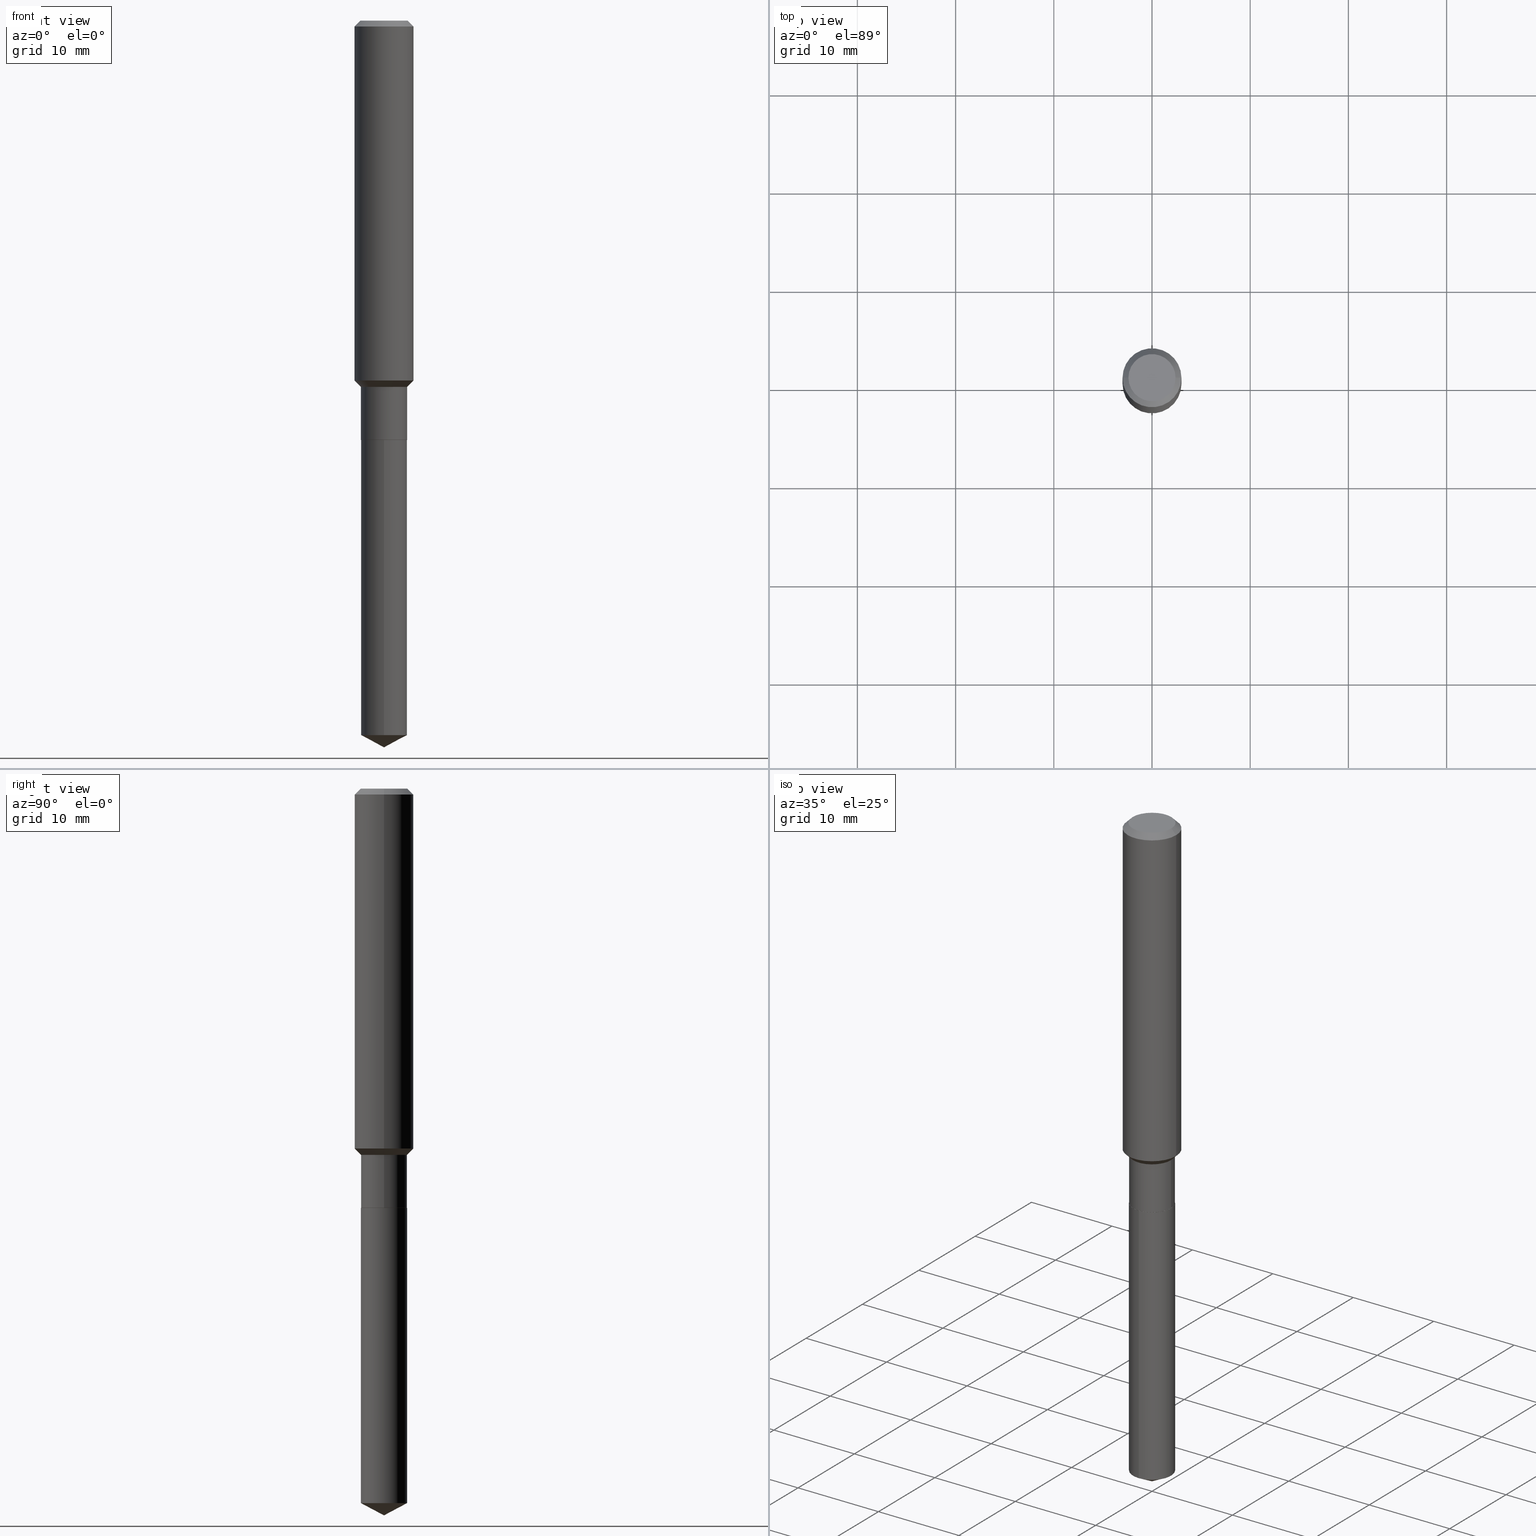
[diagram: canonical four-view strip — front | top / right | iso, engineering-drawing reading convention]
A machine part, canonical four-view strip (front | top / right | iso — engineering-drawing reading convention). The complete STEP part file that produces these views, byte-faithful:
ISO-10303-21;
HEADER;
FILE_DESCRIPTION (( 'STEP AP203' ),
    '1' );
FILE_NAME ('65177.STEP',
    '2024-04-24T20:59:11',
    ( '' ),
    ( '' ),
    'SwSTEP 2.0',
    'SolidWorks 2023',
    '' );
FILE_SCHEMA (( 'CONFIG_CONTROL_DESIGN' ));
ENDSEC;

DATA;
#1 = SECURITY_CLASSIFICATION ( '', '', #375 ) ;
#2 = CARTESIAN_POINT ( 'NONE',  ( 0.09249999999999998501, -5.772466097509370892E-15, -1.468299999999999939 ) ) ;
#3 = AXIS2_PLACEMENT_3D ( 'NONE', #165, #20, #277 ) ;
#4 = PERSON_AND_ORGANIZATION ( #178, #473 ) ;
#5 = CARTESIAN_POINT ( 'NONE',  ( 6.572520305781336848E-16, 0.09249999999999412859, -1.681100000000000483 ) ) ;
#6 = CC_DESIGN_PERSON_AND_ORGANIZATION_ASSIGNMENT ( #83, #228, ( #161 ) ) ;
#7 = ORIENTED_EDGE ( 'NONE', *, *, #266, .F. ) ;
#8 = CALENDAR_DATE ( 2024, 24, 4 ) ;
#9 = ORIENTED_EDGE ( 'NONE', *, *, #14, .F. ) ;
#10 = CIRCLE ( 'NONE', #348, 0.09199999999999999845 ) ;
#11 = VECTOR ( 'NONE', #121, 39.37007874015748143 ) ;
#12 = CIRCLE ( 'NONE', #453, 0.09199999999999999845 ) ;
#13 = LINE ( 'NONE', #5, #462 ) ;
#14 = EDGE_CURVE ( 'NONE', #180, #253, #79, .T. ) ;
#15 = DIRECTION ( 'NONE',  ( 1.000000000000000000, -6.982962677686266711E-15, 0.000000000000000000 ) ) ;
#16 = CYLINDRICAL_SURFACE ( 'NONE', #122, 0.09249999999999999889 ) ;
#17 = PRODUCT_DEFINITION_SHAPE ( 'NONE', 'NONE',  #87 ) ;
#18 = PRODUCT_RELATED_PRODUCT_CATEGORY ( 'detail', '', ( #205 ) ) ;
#19 = DIRECTION ( 'NONE',  ( -2.438088387897960049E-29, 3.491481338843145188E-15, 1.000000000000000000 ) ) ;
#20 = DIRECTION ( 'NONE',  ( -2.445468806185136597E-29, 3.491481338843145583E-15, 1.000000000000000000 ) ) ;
#21 = LOCAL_TIME ( 16, 59, 11.00000000000000000, #111 ) ;
#22 = CLOSED_SHELL ( 'NONE', ( #153, #427, #101, #115, #310 ) ) ;
#23 = CONICAL_SURFACE ( 'NONE', #168, 0.1180999999999999966, 0.7853981633974460586 ) ;
#24 = CYLINDRICAL_SURFACE ( 'NONE', #432, 0.1181000000000000799 ) ;
#25 = LINE ( 'NONE', #317, #444 ) ;
#26 = UNCERTAINTY_MEASURE_WITH_UNIT (LENGTH_MEASURE( 1.000000000000000082E-05 ), #256, 'distance_accuracy_value', 'NONE');
#27 = CC_DESIGN_DATE_AND_TIME_ASSIGNMENT ( #306, #270, ( #1 ) ) ;
#28 = CARTESIAN_POINT ( 'NONE',  ( -0.09249999999999999889, 6.572520305780926640E-16, -4.550014958485788170E-30 ) ) ;
#29 = CARTESIAN_POINT ( 'NONE',  ( 4.111077610077833736E-29, -5.869529278729212802E-15, -1.681100000000000261 ) ) ;
#30 =( NAMED_UNIT ( * ) SI_UNIT ( $, .STERADIAN. ) SOLID_ANGLE_UNIT ( ) );
#31 = AXIS2_PLACEMENT_3D ( 'NONE', #243, #315, #359 ) ;
#32 = DIRECTION ( 'NONE',  ( 1.000000000000000000, -6.982962677686266711E-15, 4.876176775795936353E-29 ) ) ;
#33 = EDGE_CURVE ( 'NONE', #267, #180, #456, .T. ) ;
#34 = PLANE ( 'NONE',  #363 ) ;
#35 = EDGE_LOOP ( 'NONE', ( #145, #263, #108, #297 ) ) ;
#36 = CARTESIAN_POINT ( 'NONE',  ( 0.1181000000000000799, -8.246878922347486570E-16, 5.758764772215004644E-30 ) ) ;
#37 = CC_DESIGN_APPROVAL ( #376, ( #1 ) ) ;
#38 = EDGE_CURVE ( 'NONE', #267, #333, #163, .T. ) ;
#39 = VERTEX_POINT ( 'NONE', #341 ) ;
#40 = VERTEX_POINT ( 'NONE', #84 ) ;
#41 = APPROVAL_STATUS ( 'not_yet_approved' ) ;
#42 = ORIENTED_EDGE ( 'NONE', *, *, #60, .T. ) ;
#43 = PERSON_AND_ORGANIZATION_ROLE ( 'classification_officer' ) ;
#44 = CYLINDRICAL_SURFACE ( 'NONE', #330, 0.09249999999999999889 ) ;
#45 = APPROVAL ( #261, 'UNSPECIFIED' ) ;
#46 = CARTESIAN_POINT ( 'NONE',  ( -0.09199999999999999845, -5.215829961829920839E-15, -1.681100000000000261 ) ) ;
#47 = ORIENTED_EDGE ( 'NONE', *, *, #410, .T. ) ;
#48 = CARTESIAN_POINT ( 'NONE',  ( 4.111077610077833736E-29, -5.869529278729212802E-15, -1.681100000000000261 ) ) ;
#49 = DIRECTION ( 'NONE',  ( -2.445468806185136597E-29, 3.491481338843145583E-15, 1.000000000000000000 ) ) ;
#50 = FACE_OUTER_BOUND ( 'NONE', #482, .T. ) ;
#51 = ORIENTED_EDGE ( 'NONE', *, *, #60, .F. ) ;
#52 = ADVANCED_FACE ( 'NONE', ( #231 ), #44, .T. ) ;
#53 = CC_DESIGN_APPROVAL ( #45, ( #161 ) ) ;
#54 = VECTOR ( 'NONE', #124, 39.37007874015748143 ) ;
#55 = DIRECTION ( 'NONE',  ( 2.445468806185136597E-29, -3.491481338843145583E-15, -1.000000000000000000 ) ) ;
#56 = LINE ( 'NONE', #28, #288 ) ;
#57 = APPLICATION_CONTEXT ( 'configuration controlled 3d designs of mechanical parts and assemblies' ) ;
#58 = FACE_OUTER_BOUND ( 'NONE', #480, .T. ) ;
#59 = VECTOR ( 'NONE', #370, 39.37007874015748143 ) ;
#60 = EDGE_CURVE ( 'NONE', #366, #71, #162, .T. ) ;
#61 = CIRCLE ( 'NONE', #3, 0.1181000000000001632 ) ;
#62 = DIRECTION ( 'NONE',  ( -1.000000000000000000, 6.982962677686266711E-15, 0.000000000000000000 ) ) ;
#63 = DIRECTION ( 'NONE',  ( -6.982962677686265922E-15, -1.000000000000000000, 2.953349182339743999E-15 ) ) ;
#64 = LINE ( 'NONE', #109, #59 ) ;
#65 = DIRECTION ( 'NONE',  ( -2.445468806185136597E-29, 3.491481338843145583E-15, 1.000000000000000000 ) ) ;
#66 = EDGE_CURVE ( 'NONE', #486, #255, #13, .T. ) ;
#67 = CARTESIAN_POINT ( 'NONE',  ( 4.111077610077833736E-29, -5.869529278729212802E-15, -1.681100000000000261 ) ) ;
#68 = CONICAL_SURFACE ( 'NONE', #339, 0.09249999999999998501, 0.7853981633974492782 ) ;
#69 = ORIENTED_EDGE ( 'NONE', *, *, #134, .F. ) ;
#70 = VERTEX_POINT ( 'NONE', #236 ) ;
#71 = VERTEX_POINT ( 'NONE', #164 ) ;
#72 = CARTESIAN_POINT ( 'NONE',  ( -0.09447999999999998066, 7.009847083995354710E-16, -1.928573779297727792E-17 ) ) ;
#73 = CONICAL_SURFACE ( 'NONE', #94, 74.04434902938325536, 1.082104136236484937 ) ;
#74 = ORIENTED_EDGE ( 'NONE', *, *, #431, .F. ) ;
#75 = PERSON_AND_ORGANIZATION ( #178, #473 ) ;
#76 = EDGE_LOOP ( 'NONE', ( #287, #380, #322, #9 ) ) ;
#77 = CALENDAR_DATE ( 2024, 24, 4 ) ;
#78 = CARTESIAN_POINT ( 'NONE',  ( -0.09249999999999999889, -4.839910763363498635E-15, -1.680600000000000316 ) ) ;
#79 = LINE ( 'NONE', #2, #120 ) ;
#80 = EDGE_CURVE ( 'NONE', #255, #71, #275, .T. ) ;
#81 = ORIENTED_EDGE ( 'NONE', *, *, #209, .T. ) ;
#82 = CONICAL_SURFACE ( 'NONE', #307, 0.09249999999999998501, 0.7853981633974492782 ) ;
#83 = PERSON_AND_ORGANIZATION ( #178, #473 ) ;
#84 = CARTESIAN_POINT ( 'NONE',  ( -0.1181000000000001632, -4.198009156616326204E-15, -1.442699999999999871 ) ) ;
#85 = EDGE_CURVE ( 'NONE', #70, #40, #422, .T. ) ;
#86 = DIRECTION ( 'NONE',  ( -2.445523626851900932E-29, 3.491402832528140421E-15, 1.000000000000000000 ) ) ;
#87 = PRODUCT_DEFINITION ( 'UNKNOWN', '', #161, #146 ) ;
#88 = CARTESIAN_POINT ( 'NONE',  ( 0.000000000000000000, 0.000000000000000000, 0.000000000000000000 ) ) ;
#89 = AXIS2_PLACEMENT_3D ( 'NONE', #185, #65, #177 ) ;
#90 = DIRECTION ( 'NONE',  ( -2.445523626851900652E-29, 3.491402832528140815E-15, 1.000000000000000000 ) ) ;
#91 = CC_DESIGN_DATE_AND_TIME_ASSIGNMENT ( #414, #334, ( #87 ) ) ;
#92 = DIRECTION ( 'NONE',  ( -2.445468806185136597E-29, 3.491481338843145583E-15, 1.000000000000000000 ) ) ;
#93 = DIRECTION ( 'NONE',  ( -2.445468806185136597E-29, 3.491481338843145583E-15, 1.000000000000000000 ) ) ;
#94 = AXIS2_PLACEMENT_3D ( 'NONE', #293, #435, #323 ) ;
#95 = VECTOR ( 'NONE', #170, 39.37007874015748143 ) ;
#96 = DIRECTION ( 'NONE',  ( -2.445468806185136597E-29, 3.491481338843145583E-15, 1.000000000000000000 ) ) ;
#97 = DIRECTION ( 'NONE',  ( 1.000000000000000000, -6.982962677686265922E-15, 0.000000000000000000 ) ) ;
#98 = CARTESIAN_POINT ( 'NONE',  ( -0.1181000000000000799, 8.391509709326788873E-16, -5.809262341591047988E-30 ) ) ;
#99 = ADVANCED_FACE ( 'NONE', ( #157 ), #23, .T. ) ;
#100 = CARTESIAN_POINT ( 'NONE',  ( 0.09249999999999998501, -5.772466097509370892E-15, -1.468299999999999939 ) ) ;
#101 = ADVANCED_FACE ( 'NONE', ( #242 ), #214, .T. ) ;
#102 = ORIENTED_EDGE ( 'NONE', *, *, #479, .T. ) ;
#103 = CIRCLE ( 'NONE', #416, 0.09249999999999998501 ) ;
#104 = MANIFOLD_SOLID_BREP ( 'Body-Move/Copy2[2]', #329 ) ;
#105 = CARTESIAN_POINT ( 'NONE',  ( 0.1180999999999999966, -9.071566814582237199E-16, -0.02362000000000014088 ) ) ;
#106 = ORIENTED_EDGE ( 'NONE', *, *, #465, .F. ) ;
#107 = LINE ( 'NONE', #289, #175 ) ;
#108 = ORIENTED_EDGE ( 'NONE', *, *, #465, .T. ) ;
#109 = CARTESIAN_POINT ( 'NONE',  ( -0.1180999999999999966, 7.422191030112725094E-16, -0.02362000000000014088 ) ) ;
#110 = ORIENTED_EDGE ( 'NONE', *, *, #80, .F. ) ;
#111 = COORDINATED_UNIVERSAL_TIME_OFFSET ( 5, 0, .BEHIND. ) ;
#112 = AXIS2_PLACEMENT_3D ( 'NONE', #391, #211, #276 ) ;
#113 = EDGE_LOOP ( 'NONE', ( #182, #265, #403 ) ) ;
#114 = CALENDAR_DATE ( 2024, 24, 4 ) ;
#115 = ADVANCED_FACE ( 'NONE', ( #203 ), #210, .T. ) ;
#116 = DIRECTION ( 'NONE',  ( 1.000000000000000000, -6.982962677686265133E-15, 0.000000000000000000 ) ) ;
#117 = SHAPE_DEFINITION_REPRESENTATION ( #17, #219 ) ;
#118 = VERTEX_POINT ( 'NONE', #279 ) ;
#119 = APPROVAL_PERSON_ORGANIZATION ( #190, #460, #342 ) ;
#120 = VECTOR ( 'NONE', #159, 39.37007874015748143 ) ;
#121 = DIRECTION ( 'NONE',  ( -2.445468806185136877E-29, 3.491481338843145188E-15, 1.000000000000000000 ) ) ;
#122 = AXIS2_PLACEMENT_3D ( 'NONE', #241, #312, #351 ) ;
#123 = EDGE_CURVE ( 'NONE', #40, #253, #61, .T. ) ;
#124 = DIRECTION ( 'NONE',  ( -2.445523626851900932E-29, 3.491402832528140421E-15, 1.000000000000000000 ) ) ;
#125 = EDGE_LOOP ( 'NONE', ( #285, #489, #148, #350 ) ) ;
#126 = CIRCLE ( 'NONE', #368, 0.09249999999999999889 ) ;
#127 = DIRECTION ( 'NONE',  ( 1.000000000000000000, -6.982962677686269866E-15, 0.000000000000000000 ) ) ;
#128 = VECTOR ( 'NONE', #308, 39.37007874015748143 ) ;
#129 = FACE_OUTER_BOUND ( 'NONE', #186, .T. ) ;
#130 = DIRECTION ( 'NONE',  ( -2.445523626851900652E-29, 3.491402832528140815E-15, 1.000000000000000000 ) ) ;
#131 = DIRECTION ( 'NONE',  ( 2.438088387897960049E-29, -3.491481338843145188E-15, -1.000000000000000000 ) ) ;
#132 = CARTESIAN_POINT ( 'NONE',  ( 6.572520305781627741E-16, 0.09249999999999412859, -1.681100000000000483 ) ) ;
#133 = AXIS2_PLACEMENT_3D ( 'NONE', #254, #396, #286 ) ;
#134 = EDGE_CURVE ( 'NONE', #227, #486, #25, .T. ) ;
#135 = CARTESIAN_POINT ( 'NONE',  ( 4.716267017698007905E-46, -6.733579360998555036E-32, -1.928573779297252010E-17 ) ) ;
#136 = FACE_OUTER_BOUND ( 'NONE', #364, .T. ) ;
#137 = DIRECTION ( 'NONE',  ( 1.000000000000000000, -6.982962677686266711E-15, 4.876176775795936353E-29 ) ) ;
#138 = ORIENTED_EDGE ( 'NONE', *, *, #340, .T. ) ;
#139 = LINE ( 'NONE', #36, #154 ) ;
#140 = CARTESIAN_POINT ( 'NONE',  ( 0.09249999999999999889, -6.513707585745771284E-15, -1.680600000000000316 ) ) ;
#141 = ORIENTED_EDGE ( 'NONE', *, *, #33, .F. ) ;
#142 = APPROVAL_PERSON_ORGANIZATION ( #152, #376, #298 ) ;
#143 = CARTESIAN_POINT ( 'NONE',  ( 4.111077610077833736E-29, -5.869529278729212802E-15, -1.681100000000000261 ) ) ;
#144 = DIRECTION ( 'NONE',  ( -2.445468806185136597E-29, 3.491481338843145583E-15, 1.000000000000000000 ) ) ;
#145 = ORIENTED_EDGE ( 'NONE', *, *, #487, .F. ) ;
#146 = DESIGN_CONTEXT ( 'detailed design', #57, 'design' ) ;
#147 = DIRECTION ( 'NONE',  ( -2.445468806185136597E-29, 3.491481338843145583E-15, 1.000000000000000000 ) ) ;
#148 = ORIENTED_EDGE ( 'NONE', *, *, #347, .F. ) ;
#149 = PERSON_AND_ORGANIZATION ( #178, #473 ) ;
#150 = DIRECTION ( 'NONE',  ( 1.000000000000000000, -6.982962677686269866E-15, 0.000000000000000000 ) ) ;
#151 = ORIENTED_EDGE ( 'NONE', *, *, #189, .T. ) ;
#152 = PERSON_AND_ORGANIZATION ( #178, #473 ) ;
#153 = ADVANCED_FACE ( 'NONE', ( #58 ), #430, .T. ) ;
#154 = VECTOR ( 'NONE', #332, 39.37007874015748143 ) ;
#155 = EDGE_LOOP ( 'NONE', ( #421, #151, #42, #110 ) ) ;
#156 = CALENDAR_DATE ( 2024, 24, 4 ) ;
#157 = FACE_OUTER_BOUND ( 'NONE', #35, .T. ) ;
#158 = APPROVAL_ROLE ( '' ) ;
#159 = DIRECTION ( 'NONE',  ( 0.7071067811865482389, -2.468850131082264555E-15, 0.7071067811865467956 ) ) ;
#160 = CALENDAR_DATE ( 2024, 24, 4 ) ;
#161 = PRODUCT_DEFINITION_FORMATION_WITH_SPECIFIED_SOURCE ( 'ANY', '', #205, .NOT_KNOWN. ) ;
#162 = LINE ( 'NONE', #201, #54 ) ;
#163 = CIRCLE ( 'NONE', #379, 0.09249999999999999889 ) ;
#164 = CARTESIAN_POINT ( 'NONE',  ( -6.459240476859384725E-16, -0.09250000000000588307, -1.681100000000000039 ) ) ;
#165 = CARTESIAN_POINT ( 'NONE',  ( 3.528077846683296639E-29, -5.037160127549005190E-15, -1.442699999999999871 ) ) ;
#166 = EDGE_CURVE ( 'NONE', #227, #366, #436, .T. ) ;
#167 = CARTESIAN_POINT ( 'NONE',  ( 7.124788534470329018E-29, -1.017185301228748843E-14, -2.913400000000000212 ) ) ;
#168 = AXIS2_PLACEMENT_3D ( 'NONE', #301, #55, #62 ) ;
#169 = CARTESIAN_POINT ( 'NONE',  ( 0.000000000000000000, 0.000000000000000000, 0.000000000000000000 ) ) ;
#170 = DIRECTION ( 'NONE',  ( -6.165590087286828929E-15, -0.8829475928589255451, 0.4694715627858933038 ) ) ;
#171 = CARTESIAN_POINT ( 'NONE',  ( -0.1180999999999999966, -1.720663487453560943E-15, -0.02362000000000014088 ) ) ;
#172 = ADVANCED_FACE ( 'NONE', ( #393 ), #16, .T. ) ;
#173 = CC_DESIGN_PERSON_AND_ORGANIZATION_ASSIGNMENT ( #4, #43, ( #1 ) ) ;
#174 = DIRECTION ( 'NONE',  ( -6.982962677686266711E-15, -1.000000000000000000, 3.541896320645574279E-15 ) ) ;
#175 = VECTOR ( 'NONE', #445, 39.37007874015748143 ) ;
#176 = AXIS2_PLACEMENT_3D ( 'NONE', #327, #144, #32 ) ;
#177 = DIRECTION ( 'NONE',  ( 1.000000000000000000, -6.982962677686266711E-15, 0.000000000000000000 ) ) ;
#178 = PERSON ( 'UNSPECIFIED', 'UNSPECIFIED', 'UNSPECIFIED', ('UNSPECIFIED'), ('UNSPECIFIED'), ('UNSPECIFIED') ) ;
#179 = DIRECTION ( 'NONE',  ( 1.000000000000000000, -6.982962677686267499E-15, 4.875432709231658792E-29 ) ) ;
#180 = VERTEX_POINT ( 'NONE', #100 ) ;
#181 = ADVANCED_FACE ( 'NONE', ( #434 ), #184, .T. ) ;
#182 = ORIENTED_EDGE ( 'NONE', *, *, #166, .F. ) ;
#183 = LENGTH_MEASURE_WITH_UNIT ( LENGTH_MEASURE( 0.02539999999999999897 ), #367 );
#184 = CONICAL_SURFACE ( 'NONE', #233, 0.09199999999999999845, 0.7853981633975507526 ) ;
#185 = CARTESIAN_POINT ( 'NONE',  ( 5.776197320209327532E-31, -8.246878922347559293E-17, -0.02362000000000014088 ) ) ;
#186 = EDGE_LOOP ( 'NONE', ( #401, #443, #47, #199 ) ) ;
#187 =( NAMED_UNIT ( * ) PLANE_ANGLE_UNIT ( ) SI_UNIT ( $, .RADIAN. ) );
#188 = ORIENTED_EDGE ( 'NONE', *, *, #123, .F. ) ;
#189 = EDGE_CURVE ( 'NONE', #486, #366, #417, .T. ) ;
#190 = PERSON_AND_ORGANIZATION ( #178, #473 ) ;
#191 = DIRECTION ( 'NONE',  ( 6.982962677686265922E-15, 1.000000000000000000, -3.491402832528140421E-15 ) ) ;
#192 = ORIENTED_EDGE ( 'NONE', *, *, #272, .T. ) ;
#193 =( GEOMETRIC_REPRESENTATION_CONTEXT ( 3 ) GLOBAL_UNCERTAINTY_ASSIGNED_CONTEXT ( ( #26 ) ) GLOBAL_UNIT_ASSIGNED_CONTEXT ( ( #256, #187, #30 ) ) REPRESENTATION_CONTEXT ( 'NONE', 'WORKASPACE' ) );
#194 = APPROVAL_DATE_TIME ( #230, #376 ) ;
#195 = AXIS2_PLACEMENT_3D ( 'NONE', #48, #409, #303 ) ;
#196 = DIRECTION ( 'NONE',  ( 1.000000000000000000, -6.982962677686266711E-15, 4.876176775795935793E-29 ) ) ;
#197 = APPROVAL_STATUS ( 'not_yet_approved' ) ;
#198 = ORIENTED_EDGE ( 'NONE', *, *, #431, .T. ) ;
#199 = ORIENTED_EDGE ( 'NONE', *, *, #292, .F. ) ;
#200 = CARTESIAN_POINT ( 'NONE',  ( 5.776197320209327532E-31, -8.246878922347559293E-17, -0.02362000000000014088 ) ) ;
#201 = CARTESIAN_POINT ( 'NONE',  ( -6.459240476859384725E-16, -0.09250000000000588307, -1.681100000000000039 ) ) ;
#202 = DIMENSIONAL_EXPONENTS ( 1.000000000000000000, 0.000000000000000000, 0.000000000000000000, 0.000000000000000000, 0.000000000000000000, 0.000000000000000000, 0.000000000000000000 ) ;
#203 = FACE_OUTER_BOUND ( 'NONE', #155, .T. ) ;
#204 = ADVANCED_FACE ( 'NONE', ( #136 ), #466, .F. ) ;
#205 = PRODUCT ( '65177', '65177', '', ( #344 ) ) ;
#206 = DIRECTION ( 'NONE',  ( -2.445468806185136877E-29, 3.491481338843145188E-15, 1.000000000000000000 ) ) ;
#207 = PLANE ( 'NONE',  #305 ) ;
#208 = DIRECTION ( 'NONE',  ( -2.445523626851900652E-29, 3.491402832528140815E-15, 1.000000000000000000 ) ) ;
#209 = EDGE_CURVE ( 'NONE', #333, #70, #56, .T. ) ;
#210 = CYLINDRICAL_SURFACE ( 'NONE', #280, 0.09249999999999999889 ) ;
#211 = DIRECTION ( 'NONE',  ( -2.445468806185136597E-29, 3.491481338843145583E-15, 1.000000000000000000 ) ) ;
#212 = DIRECTION ( 'NONE',  ( -2.445468806185136597E-29, 3.491481338843145583E-15, 1.000000000000000000 ) ) ;
#213 = CARTESIAN_POINT ( 'NONE',  ( 6.572520305781625768E-16, 0.09249999999998999300, -2.864216877571314157 ) ) ;
#214 = CONICAL_SURFACE ( 'NONE', #407, 74.04434902938325536, 1.082104136236484937 ) ;
#215 = DIRECTION ( 'NONE',  ( -2.445468806185136597E-29, 3.491481338843145583E-15, 1.000000000000000000 ) ) ;
#216 = ORIENTED_EDGE ( 'NONE', *, *, #479, .F. ) ;
#217 = DIRECTION ( 'NONE',  ( 1.000000000000000000, -6.982962677686267499E-15, 4.875432709231658792E-29 ) ) ;
#218 = DIRECTION ( 'NONE',  ( 1.000000000000000000, -6.982962677686265133E-15, 0.000000000000000000 ) ) ;
#219 = ADVANCED_BREP_SHAPE_REPRESENTATION ( '65177', ( #423, #104, #397 ), #193 ) ;
#220 = EDGE_LOOP ( 'NONE', ( #234, #81, #294, #141 ) ) ;
#221 = DIRECTION ( 'NONE',  ( 1.000000000000000000, -6.982962677686269866E-15, 0.000000000000000000 ) ) ;
#222 = DIRECTION ( 'NONE',  ( 2.445468806185136597E-29, -3.491481338843145583E-15, -1.000000000000000000 ) ) ;
#223 = ORIENTED_EDGE ( 'NONE', *, *, #38, .F. ) ;
#224 = VECTOR ( 'NONE', #440, 39.37007874015748143 ) ;
#225 = CONICAL_SURFACE ( 'NONE', #318, 0.1180999999999999966, 0.7853981633974460586 ) ;
#226 = ADVANCED_FACE ( 'NONE', ( #352 ), #68, .T. ) ;
#227 = VERTEX_POINT ( 'NONE', #167 ) ;
#228 = PERSON_AND_ORGANIZATION_ROLE ( 'design_supplier' ) ;
#229 = EDGE_LOOP ( 'NONE', ( #335, #192, #337, #216 ) ) ;
#230 = DATE_AND_TIME ( #114, #249 ) ;
#231 = FACE_OUTER_BOUND ( 'NONE', #220, .T. ) ;
#232 = LOCAL_TIME ( 16, 59, 11.00000000000000000, #457 ) ;
#233 = AXIS2_PLACEMENT_3D ( 'NONE', #386, #93, #127 ) ;
#234 = ORIENTED_EDGE ( 'NONE', *, *, #38, .T. ) ;
#235 = ORIENTED_EDGE ( 'NONE', *, *, #166, .T. ) ;
#236 = CARTESIAN_POINT ( 'NONE',  ( -0.09249999999999998501, -4.839910763363498635E-15, -1.468299999999999939 ) ) ;
#237 = CARTESIAN_POINT ( 'NONE',  ( -0.09249999999999998501, -4.469290019245298045E-15, -1.468299999999999939 ) ) ;
#238 = AXIS2_PLACEMENT_3D ( 'NONE', #485, #296, #218 ) ;
#239 = ADVANCED_FACE ( 'NONE', ( #471 ), #82, .T. ) ;
#240 = FACE_OUTER_BOUND ( 'NONE', #258, .T. ) ;
#241 = CARTESIAN_POINT ( 'NONE',  ( 0.000000000000000000, 0.000000000000000000, 0.000000000000000000 ) ) ;
#242 = FACE_OUTER_BOUND ( 'NONE', #271, .T. ) ;
#243 = CARTESIAN_POINT ( 'NONE',  ( 7.004417887505728040E-29, -1.000026689629354577E-14, -2.864216877571313269 ) ) ;
#244 = AXIS2_PLACEMENT_3D ( 'NONE', #470, #354, #314 ) ;
#245 = FACE_OUTER_BOUND ( 'NONE', #463, .T. ) ;
#246 = CARTESIAN_POINT ( 'NONE',  ( -6.459240476859095804E-16, -0.09250000000001000477, -2.864216877571312825 ) ) ;
#247 = DIRECTION ( 'NONE',  ( 1.000000000000000000, -6.982962677686265922E-15, 0.000000000000000000 ) ) ;
#248 = CARTESIAN_POINT ( 'NONE',  ( 3.590681848121635967E-29, -5.126542049823390906E-15, -1.468299999999999939 ) ) ;
#249 = LOCAL_TIME ( 16, 59, 11.00000000000000000, #378 ) ;
#250 = VERTEX_POINT ( 'NONE', #171 ) ;
#251 = EDGE_CURVE ( 'NONE', #366, #486, #355, .T. ) ;
#252 = AXIS2_PLACEMENT_3D ( 'NONE', #200, #96, #15 ) ;
#253 = VERTEX_POINT ( 'NONE', #472 ) ;
#254 = CARTESIAN_POINT ( 'NONE',  ( 3.590681848121635967E-29, -5.126542049823390906E-15, -1.468299999999999939 ) ) ;
#255 = VERTEX_POINT ( 'NONE', #132 ) ;
#256 =( CONVERSION_BASED_UNIT ( 'INCH', #183 ) LENGTH_UNIT ( ) NAMED_UNIT ( #202 ) );
#257 = ADVANCED_FACE ( 'NONE', ( #245 ), #225, .T. ) ;
#258 = EDGE_LOOP ( 'NONE', ( #304, #7 ) ) ;
#259 = LOCAL_TIME ( 16, 59, 11.00000000000000000, #418 ) ;
#260 = CC_DESIGN_PERSON_AND_ORGANIZATION_ASSIGNMENT ( #449, #302, ( #205 ) ) ;
#261 = APPROVAL_STATUS ( 'not_yet_approved' ) ;
#262 = CIRCLE ( 'NONE', #238, 0.09249999999999999889 ) ;
#263 = ORIENTED_EDGE ( 'NONE', *, *, #441, .F. ) ;
#264 = DATE_AND_TIME ( #160, #232 ) ;
#265 = ORIENTED_EDGE ( 'NONE', *, *, #134, .T. ) ;
#266 = EDGE_CURVE ( 'NONE', #118, #398, #12, .T. ) ;
#267 = VERTEX_POINT ( 'NONE', #140 ) ;
#268 = CIRCLE ( 'NONE', #112, 0.1181000000000001632 ) ;
#269 = CARTESIAN_POINT ( 'NONE',  ( 4.109854875674741495E-29, -5.867783538059791298E-15, -1.680600000000000316 ) ) ;
#270 = DATE_TIME_ROLE ( 'classification_date' ) ;
#271 = EDGE_LOOP ( 'NONE', ( #69, #235, #377 ) ) ;
#272 = EDGE_CURVE ( 'NONE', #333, #267, #262, .T. ) ;
#273 = DIRECTION ( 'NONE',  ( -6.982962677686265922E-15, -1.000000000000000000, 2.953349182339743999E-15 ) ) ;
#274 = DIRECTION ( 'NONE',  ( -1.000000000000000000, 6.982962677686265922E-15, -4.876176775795935793E-29 ) ) ;
#275 = CIRCLE ( 'NONE', #425, 0.09249999999999999889 ) ;
#276 = DIRECTION ( 'NONE',  ( 1.000000000000000000, -6.982962677686263555E-15, 0.000000000000000000 ) ) ;
#277 = DIRECTION ( 'NONE',  ( 1.000000000000000000, -6.982962677686263555E-15, 0.000000000000000000 ) ) ;
#278 = DIRECTION ( 'NONE',  ( 6.273719981627760554E-15, 0.8829475928589289868, 0.4694715627858871976 ) ) ;
#279 = CARTESIAN_POINT ( 'NONE',  ( -0.09199999999999999845, -5.213180734655809638E-15, -1.681100000000000261 ) ) ;
#280 = AXIS2_PLACEMENT_3D ( 'NONE', #29, #130, #429 ) ;
#281 = DIRECTION ( 'NONE',  ( -2.445468806185136877E-29, 3.491481338843145188E-15, 1.000000000000000000 ) ) ;
#282 = CARTESIAN_POINT ( 'NONE',  ( 5.776197320209327532E-31, -8.246878922347559293E-17, -0.02362000000000014088 ) ) ;
#283 = APPLICATION_CONTEXT ( 'configuration controlled 3d designs of mechanical parts and assemblies' ) ;
#284 = ADVANCED_FACE ( 'NONE', ( #442 ), #362, .T. ) ;
#285 = ORIENTED_EDGE ( 'NONE', *, *, #353, .T. ) ;
#286 = DIRECTION ( 'NONE',  ( 1.000000000000000000, -6.982962677686265922E-15, 0.000000000000000000 ) ) ;
#287 = ORIENTED_EDGE ( 'NONE', *, *, #374, .T. ) ;
#288 = VECTOR ( 'NONE', #206, 39.37007874015748143 ) ;
#289 = CARTESIAN_POINT ( 'NONE',  ( 0.09199999999999999845, -6.511961845076349781E-15, -1.681100000000000261 ) ) ;
#290 = DIRECTION ( 'NONE',  ( -2.445468806185136597E-29, 3.491481338843145583E-15, 1.000000000000000000 ) ) ;
#291 = VERTEX_POINT ( 'NONE', #105 ) ;
#292 = EDGE_CURVE ( 'NONE', #250, #291, #384, .T. ) ;
#293 = CARTESIAN_POINT ( 'NONE',  ( -8.915576137462740091E-28, 1.272848194409881255E-13, 36.45667874015747856 ) ) ;
#294 = ORIENTED_EDGE ( 'NONE', *, *, #374, .F. ) ;
#295 = DIRECTION ( 'NONE',  ( 1.000000000000000000, 0.000000000000000000, 0.000000000000000000 ) ) ;
#296 = DIRECTION ( 'NONE',  ( -2.445468806185136597E-29, 3.491481338843145583E-15, 1.000000000000000000 ) ) ;
#297 = ORIENTED_EDGE ( 'NONE', *, *, #292, .T. ) ;
#298 = APPROVAL_ROLE ( '' ) ;
#299 = ORIENTED_EDGE ( 'NONE', *, *, #340, .F. ) ;
#300 = APPLICATION_PROTOCOL_DEFINITION ( 'international standard', 'config_control_design', 1994, #57 ) ;
#301 = CARTESIAN_POINT ( 'NONE',  ( 5.776197320209327532E-31, -8.246878922347559293E-17, -0.02362000000000014088 ) ) ;
#302 = PERSON_AND_ORGANIZATION_ROLE ( 'design_owner' ) ;
#303 = DIRECTION ( 'NONE',  ( 1.000000000000000000, -6.982962677686269866E-15, 0.000000000000000000 ) ) ;
#304 = ORIENTED_EDGE ( 'NONE', *, *, #392, .F. ) ;
#305 = AXIS2_PLACEMENT_3D ( 'NONE', #356, #19, #469 ) ;
#306 = DATE_AND_TIME ( #77, #316 ) ;
#307 = AXIS2_PLACEMENT_3D ( 'NONE', #313, #92, #247 ) ;
#308 = DIRECTION ( 'NONE',  ( -0.7071067811866199593, 7.493145998870616062E-15, 0.7071067811864750752 ) ) ;
#309 = ORIENTED_EDGE ( 'NONE', *, *, #66, .T. ) ;
#310 = ADVANCED_FACE ( 'NONE', ( #321 ), #34, .F. ) ;
#311 = CARTESIAN_POINT ( 'NONE',  ( 4.111077610077833736E-29, -5.869529278729212802E-15, -1.681100000000000261 ) ) ;
#312 = DIRECTION ( 'NONE',  ( -2.445468806185136597E-29, 3.491481338843145583E-15, 1.000000000000000000 ) ) ;
#313 = CARTESIAN_POINT ( 'NONE',  ( 3.590681848121635967E-29, -5.126542049823390906E-15, -1.468299999999999939 ) ) ;
#314 = DIRECTION ( 'NONE',  ( -6.982962677686265922E-15, -1.000000000000000000, 5.906698364679487997E-15 ) ) ;
#315 = DIRECTION ( 'NONE',  ( -2.445523626851900652E-29, 3.491402832528140815E-15, 1.000000000000000000 ) ) ;
#316 = LOCAL_TIME ( 16, 59, 11.00000000000000000, #372 ) ;
#317 = CARTESIAN_POINT ( 'NONE',  ( 7.124790150722019449E-29, -1.017185301228748843E-14, -2.913400000000000212 ) ) ;
#318 = AXIS2_PLACEMENT_3D ( 'NONE', #282, #222, #488 ) ;
#319 = ADVANCED_FACE ( 'NONE', ( #50 ), #399, .T. ) ;
#320 = LINE ( 'NONE', #326, #224 ) ;
#321 = FACE_OUTER_BOUND ( 'NONE', #419, .T. ) ;
#322 = ORIENTED_EDGE ( 'NONE', *, *, #353, .F. ) ;
#323 = DIRECTION ( 'NONE',  ( -6.982962677686266711E-15, -1.000000000000000000, 3.541896320645574279E-15 ) ) ;
#324 = DIRECTION ( 'NONE',  ( 2.445523626851900652E-29, -3.491402832528140421E-15, -1.000000000000000000 ) ) ;
#325 = ORIENTED_EDGE ( 'NONE', *, *, #266, .T. ) ;
#326 = CARTESIAN_POINT ( 'NONE',  ( 0.1180999999999999966, -8.926936027602933910E-16, -0.02362000000000014088 ) ) ;
#327 = CARTESIAN_POINT ( 'NONE',  ( 0.000000000000000000, 0.000000000000000000, 0.000000000000000000 ) ) ;
#328 = AXIS2_PLACEMENT_3D ( 'NONE', #135, #215, #217 ) ;
#329 = CLOSED_SHELL ( 'NONE', ( #319, #257, #284, #239, #52, #172, #226, #360, #99, #204, #349, #181 ) ) ;
#330 = AXIS2_PLACEMENT_3D ( 'NONE', #88, #381, #196 ) ;
#331 = VECTOR ( 'NONE', #281, 39.37007874015748143 ) ;
#332 = DIRECTION ( 'NONE',  ( -2.445468806185136877E-29, 3.491481338843145188E-15, 1.000000000000000000 ) ) ;
#333 = VERTEX_POINT ( 'NONE', #78 ) ;
#334 = DATE_TIME_ROLE ( 'creation_date' ) ;
#335 = ORIENTED_EDGE ( 'NONE', *, *, #209, .F. ) ;
#336 = PERSON_AND_ORGANIZATION ( #178, #473 ) ;
#337 = ORIENTED_EDGE ( 'NONE', *, *, #33, .T. ) ;
#338 = DIRECTION ( 'NONE',  ( 0.000000000000000000, 0.000000000000000000, 1.000000000000000000 ) ) ;
#339 = AXIS2_PLACEMENT_3D ( 'NONE', #357, #212, #97 ) ;
#340 = EDGE_CURVE ( 'NONE', #118, #333, #345, .T. ) ;
#341 = CARTESIAN_POINT ( 'NONE',  ( 0.09447999999999998066, -7.704367267948738690E-16, -1.928573779296752193E-17 ) ) ;
#342 = APPROVAL_ROLE ( '' ) ;
#343 = ORIENTED_EDGE ( 'NONE', *, *, #450, .T. ) ;
#344 = MECHANICAL_CONTEXT ( 'NONE', #283, 'mechanical' ) ;
#345 = LINE ( 'NONE', #46, #128 ) ;
#346 = ORIENTED_EDGE ( 'NONE', *, *, #450, .F. ) ;
#347 = EDGE_CURVE ( 'NONE', #291, #250, #468, .T. ) ;
#348 = AXIS2_PLACEMENT_3D ( 'NONE', #143, #147, #221 ) ;
#349 = ADVANCED_FACE ( 'NONE', ( #240 ), #207, .F. ) ;
#350 = ORIENTED_EDGE ( 'NONE', *, *, #410, .F. ) ;
#351 = DIRECTION ( 'NONE',  ( 1.000000000000000000, -6.982962677686266711E-15, 4.876176775795935793E-29 ) ) ;
#352 = FACE_OUTER_BOUND ( 'NONE', #439, .T. ) ;
#353 = EDGE_CURVE ( 'NONE', #253, #40, #268, .T. ) ;
#354 = DIRECTION ( 'NONE',  ( -2.445523626851900652E-29, 3.491402832528140815E-15, 1.000000000000000000 ) ) ;
#355 = CIRCLE ( 'NONE', #31, 0.09249999999999999889 ) ;
#356 = CARTESIAN_POINT ( 'NONE',  ( 4.111077610077833736E-29, -5.869529278729212802E-15, -1.681100000000000261 ) ) ;
#357 = CARTESIAN_POINT ( 'NONE',  ( 3.590681848121635967E-29, -5.126542049823390906E-15, -1.468299999999999939 ) ) ;
#358 = DIRECTION ( 'NONE',  ( -2.445468806185136597E-29, 3.491481338843145583E-15, 1.000000000000000000 ) ) ;
#359 = DIRECTION ( 'NONE',  ( -6.982962677686265922E-15, -1.000000000000000000, 5.906698364679487997E-15 ) ) ;
#360 = ADVANCED_FACE ( 'NONE', ( #129 ), #24, .T. ) ;
#361 = CIRCLE ( 'NONE', #424, 0.09447999999999998066 ) ;
#362 = CYLINDRICAL_SURFACE ( 'NONE', #176, 0.1181000000000000799 ) ;
#363 = AXIS2_PLACEMENT_3D ( 'NONE', #438, #324, #191 ) ;
#364 = EDGE_LOOP ( 'NONE', ( #406, #452 ) ) ;
#365 = DIRECTION ( 'NONE',  ( -2.445523626851900652E-29, 3.491402832528140815E-15, 1.000000000000000000 ) ) ;
#366 = VERTEX_POINT ( 'NONE', #246 ) ;
#367 =( LENGTH_UNIT ( ) NAMED_UNIT ( * ) SI_UNIT ( $, .METRE. ) );
#368 = AXIS2_PLACEMENT_3D ( 'NONE', #67, #365, #447 ) ;
#369 = EDGE_LOOP ( 'NONE', ( #299, #325, #198, #373 ) ) ;
#370 = DIRECTION ( 'NONE',  ( -0.7071067811865459074, 2.468850131082240100E-15, -0.7071067811865491270 ) ) ;
#371 = ORIENTED_EDGE ( 'NONE', *, *, #80, .T. ) ;
#372 = COORDINATED_UNIVERSAL_TIME_OFFSET ( 5, 0, .BEHIND. ) ;
#373 = ORIENTED_EDGE ( 'NONE', *, *, #272, .F. ) ;
#374 = EDGE_CURVE ( 'NONE', #180, #70, #103, .T. ) ;
#375 = SECURITY_CLASSIFICATION_LEVEL ( 'unclassified' ) ;
#376 = APPROVAL ( #41, 'UNSPECIFIED' ) ;
#377 = ORIENTED_EDGE ( 'NONE', *, *, #189, .F. ) ;
#378 = COORDINATED_UNIVERSAL_TIME_OFFSET ( 5, 0, .BEHIND. ) ;
#379 = AXIS2_PLACEMENT_3D ( 'NONE', #269, #49, #116 ) ;
#380 = ORIENTED_EDGE ( 'NONE', *, *, #85, .T. ) ;
#381 = DIRECTION ( 'NONE',  ( -2.445468806185136597E-29, 3.491481338843145583E-15, 1.000000000000000000 ) ) ;
#382 = ORIENTED_EDGE ( 'NONE', *, *, #85, .F. ) ;
#383 = CIRCLE ( 'NONE', #133, 0.09249999999999998501 ) ;
#384 = CIRCLE ( 'NONE', #89, 0.1180999999999999966 ) ;
#385 = DIRECTION ( 'NONE',  ( -0.7071067811865482389, 7.493145998870357316E-15, 0.7071067811865467956 ) ) ;
#386 = CARTESIAN_POINT ( 'NONE',  ( 4.111077610077833736E-29, -5.869529278729212802E-15, -1.681100000000000261 ) ) ;
#387 = EDGE_CURVE ( 'NONE', #39, #413, #483, .T. ) ;
#388 = CARTESIAN_POINT ( 'NONE',  ( 2.358133508849003952E-46, -3.366789680499277518E-32, -9.642868896486260050E-18 ) ) ;
#389 = AXIS2_PLACEMENT_3D ( 'NONE', #426, #90, #63 ) ;
#390 = CARTESIAN_POINT ( 'NONE',  ( -8.915576137462740091E-28, 1.272848194409881255E-13, 36.45667874015747856 ) ) ;
#391 = CARTESIAN_POINT ( 'NONE',  ( 3.528077846683296639E-29, -5.037160127549005190E-15, -1.442699999999999871 ) ) ;
#392 = EDGE_CURVE ( 'NONE', #398, #118, #10, .T. ) ;
#393 = FACE_OUTER_BOUND ( 'NONE', #229, .T. ) ;
#394 = LINE ( 'NONE', #98, #331 ) ;
#395 = CARTESIAN_POINT ( 'NONE',  ( 4.111077610077833736E-29, -5.869529278729212802E-15, -1.681100000000000261 ) ) ;
#396 = DIRECTION ( 'NONE',  ( -2.445468806185136597E-29, 3.491481338843145583E-15, 1.000000000000000000 ) ) ;
#397 = AXIS2_PLACEMENT_3D ( 'NONE', #481, #338, #295 ) ;
#398 = VERTEX_POINT ( 'NONE', #484 ) ;
#399 = CONICAL_SURFACE ( 'NONE', #195, 0.09199999999999999845, 0.7853981633975507526 ) ;
#400 = CARTESIAN_POINT ( 'NONE',  ( 4.716267017698007905E-46, -6.733579360998555036E-32, -1.928573779297252010E-17 ) ) ;
#401 = ORIENTED_EDGE ( 'NONE', *, *, #428, .F. ) ;
#402 = FACE_OUTER_BOUND ( 'NONE', #113, .T. ) ;
#403 = ORIENTED_EDGE ( 'NONE', *, *, #251, .F. ) ;
#404 = DIRECTION ( 'NONE',  ( 1.000000000000000000, -6.982962677686265922E-15, 0.000000000000000000 ) ) ;
#405 = CC_DESIGN_APPROVAL ( #460, ( #87 ) ) ;
#406 = ORIENTED_EDGE ( 'NONE', *, *, #441, .T. ) ;
#407 = AXIS2_PLACEMENT_3D ( 'NONE', #390, #208, #174 ) ;
#408 = APPROVAL_DATE_TIME ( #412, #45 ) ;
#409 = DIRECTION ( 'NONE',  ( -2.445468806185136597E-29, 3.491481338843145583E-15, 1.000000000000000000 ) ) ;
#410 = EDGE_CURVE ( 'NONE', #253, #291, #139, .T. ) ;
#411 = ORIENTED_EDGE ( 'NONE', *, *, #347, .T. ) ;
#412 = DATE_AND_TIME ( #156, #21 ) ;
#413 = VERTEX_POINT ( 'NONE', #72 ) ;
#414 = DATE_AND_TIME ( #8, #259 ) ;
#415 = ORIENTED_EDGE ( 'NONE', *, *, #251, .T. ) ;
#416 = AXIS2_PLACEMENT_3D ( 'NONE', #248, #478, #404 ) ;
#417 = CIRCLE ( 'NONE', #244, 0.09249999999999999889 ) ;
#418 = COORDINATED_UNIVERSAL_TIME_OFFSET ( 5, 0, .BEHIND. ) ;
#419 = EDGE_LOOP ( 'NONE', ( #343, #371 ) ) ;
#420 = CC_DESIGN_PERSON_AND_ORGANIZATION_ASSIGNMENT ( #149, #459, ( #87 ) ) ;
#421 = ORIENTED_EDGE ( 'NONE', *, *, #66, .F. ) ;
#422 = LINE ( 'NONE', #237, #433 ) ;
#423 = MANIFOLD_SOLID_BREP ( 'Body-Move/Copy2[1]', #22 ) ;
#424 = AXIS2_PLACEMENT_3D ( 'NONE', #400, #437, #179 ) ;
#425 = AXIS2_PLACEMENT_3D ( 'NONE', #311, #464, #273 ) ;
#426 = CARTESIAN_POINT ( 'NONE',  ( 4.111077610077833736E-29, -5.869529278729212802E-15, -1.681100000000000261 ) ) ;
#427 = ADVANCED_FACE ( 'NONE', ( #402 ), #73, .T. ) ;
#428 = EDGE_CURVE ( 'NONE', #40, #250, #394, .T. ) ;
#429 = DIRECTION ( 'NONE',  ( -6.982962677686265922E-15, -1.000000000000000000, 2.953349182339743999E-15 ) ) ;
#430 = CYLINDRICAL_SURFACE ( 'NONE', #389, 0.09249999999999999889 ) ;
#431 = EDGE_CURVE ( 'NONE', #398, #267, #107, .T. ) ;
#432 = AXIS2_PLACEMENT_3D ( 'NONE', #169, #358, #137 ) ;
#433 = VECTOR ( 'NONE', #385, 39.37007874015748143 ) ;
#434 = FACE_OUTER_BOUND ( 'NONE', #369, .T. ) ;
#435 = DIRECTION ( 'NONE',  ( -2.445523626851900652E-29, 3.491402832528140815E-15, 1.000000000000000000 ) ) ;
#436 = LINE ( 'NONE', #475, #95 ) ;
#437 = DIRECTION ( 'NONE',  ( -2.445468806185136597E-29, 3.491481338843145583E-15, 1.000000000000000000 ) ) ;
#438 = CARTESIAN_POINT ( 'NONE',  ( 4.111077610077833736E-29, -5.869529278729212802E-15, -1.681100000000000261 ) ) ;
#439 = EDGE_LOOP ( 'NONE', ( #382, #102, #477, #188 ) ) ;
#440 = DIRECTION ( 'NONE',  ( 0.7071067811865459074, -7.319954787623249734E-15, -0.7071067811865491270 ) ) ;
#441 = EDGE_CURVE ( 'NONE', #413, #39, #361, .T. ) ;
#442 = FACE_OUTER_BOUND ( 'NONE', #125, .T. ) ;
#443 = ORIENTED_EDGE ( 'NONE', *, *, #123, .T. ) ;
#444 = VECTOR ( 'NONE', #278, 39.37007874015747433 ) ;
#445 = DIRECTION ( 'NONE',  ( 0.7071067811866199593, -2.468850131083015945E-15, 0.7071067811864750752 ) ) ;
#446 = ORIENTED_EDGE ( 'NONE', *, *, #387, .F. ) ;
#447 = DIRECTION ( 'NONE',  ( -6.982962677686265922E-15, -1.000000000000000000, 2.953349182339743999E-15 ) ) ;
#448 = ORIENTED_EDGE ( 'NONE', *, *, #392, .T. ) ;
#449 = PERSON_AND_ORGANIZATION ( #178, #473 ) ;
#450 = EDGE_CURVE ( 'NONE', #71, #255, #126, .T. ) ;
#451 = CC_DESIGN_SECURITY_CLASSIFICATION ( #1, ( #161 ) ) ;
#452 = ORIENTED_EDGE ( 'NONE', *, *, #387, .T. ) ;
#453 = AXIS2_PLACEMENT_3D ( 'NONE', #395, #290, #150 ) ;
#454 = CC_DESIGN_PERSON_AND_ORGANIZATION_ASSIGNMENT ( #75, #490, ( #161 ) ) ;
#455 = APPROVAL_DATE_TIME ( #264, #460 ) ;
#456 = LINE ( 'NONE', #461, #11 ) ;
#457 = COORDINATED_UNIVERSAL_TIME_OFFSET ( 5, 0, .BEHIND. ) ;
#458 = ORIENTED_EDGE ( 'NONE', *, *, #487, .T. ) ;
#459 = PERSON_AND_ORGANIZATION_ROLE ( 'creator' ) ;
#460 = APPROVAL ( #197, 'UNSPECIFIED' ) ;
#461 = CARTESIAN_POINT ( 'NONE',  ( 0.09249999999999999889, -6.459240476859796904E-16, 4.510463517611240749E-30 ) ) ;
#462 = VECTOR ( 'NONE', #86, 39.37007874015748143 ) ;
#463 = EDGE_LOOP ( 'NONE', ( #446, #458, #411, #106 ) ) ;
#464 = DIRECTION ( 'NONE',  ( -2.445523626851900652E-29, 3.491402832528140815E-15, 1.000000000000000000 ) ) ;
#465 = EDGE_CURVE ( 'NONE', #413, #250, #64, .T. ) ;
#466 = PLANE ( 'NONE',  #474 ) ;
#467 = APPROVAL_PERSON_ORGANIZATION ( #336, #45, #158 ) ;
#468 = CIRCLE ( 'NONE', #252, 0.1180999999999999966 ) ;
#469 = DIRECTION ( 'NONE',  ( 1.000000000000000000, -6.982962677686265922E-15, 4.876176775795935793E-29 ) ) ;
#470 = CARTESIAN_POINT ( 'NONE',  ( 7.004417887505728040E-29, -1.000026689629354577E-14, -2.864216877571313269 ) ) ;
#471 = FACE_OUTER_BOUND ( 'NONE', #76, .T. ) ;
#472 = CARTESIAN_POINT ( 'NONE',  ( 0.1181000000000001632, -5.861848019783755031E-15, -1.442699999999999871 ) ) ;
#473 = ORGANIZATION ( 'UNSPECIFIED', 'UNSPECIFIED', '' ) ;
#474 = AXIS2_PLACEMENT_3D ( 'NONE', #388, #131, #274 ) ;
#475 = CARTESIAN_POINT ( 'NONE',  ( 7.124604216424533587E-29, -1.017211696621979576E-14, -2.913400000000000212 ) ) ;
#476 = APPLICATION_PROTOCOL_DEFINITION ( 'international standard', 'config_control_design', 1994, #283 ) ;
#477 = ORIENTED_EDGE ( 'NONE', *, *, #14, .T. ) ;
#478 = DIRECTION ( 'NONE',  ( -2.445468806185136597E-29, 3.491481338843145583E-15, 1.000000000000000000 ) ) ;
#479 = EDGE_CURVE ( 'NONE', #70, #180, #383, .T. ) ;
#480 = EDGE_LOOP ( 'NONE', ( #415, #309, #346, #51 ) ) ;
#481 = CARTESIAN_POINT ( 'NONE',  ( 0.000000000000000000, 0.000000000000000000, 0.000000000000000000 ) ) ;
#482 = EDGE_LOOP ( 'NONE', ( #448, #138, #223, #74 ) ) ;
#483 = CIRCLE ( 'NONE', #328, 0.09447999999999998066 ) ;
#484 = CARTESIAN_POINT ( 'NONE',  ( 0.09199999999999999845, -6.511961845076349781E-15, -1.681100000000000261 ) ) ;
#485 = CARTESIAN_POINT ( 'NONE',  ( 4.109854875674741495E-29, -5.867783538059791298E-15, -1.680600000000000316 ) ) ;
#486 = VERTEX_POINT ( 'NONE', #213 ) ;
#487 = EDGE_CURVE ( 'NONE', #39, #291, #320, .T. ) ;
#488 = DIRECTION ( 'NONE',  ( -1.000000000000000000, 6.982962677686266711E-15, 0.000000000000000000 ) ) ;
#489 = ORIENTED_EDGE ( 'NONE', *, *, #428, .T. ) ;
#490 = PERSON_AND_ORGANIZATION_ROLE ( 'creator' ) ;
ENDSEC;
END-ISO-10303-21;
